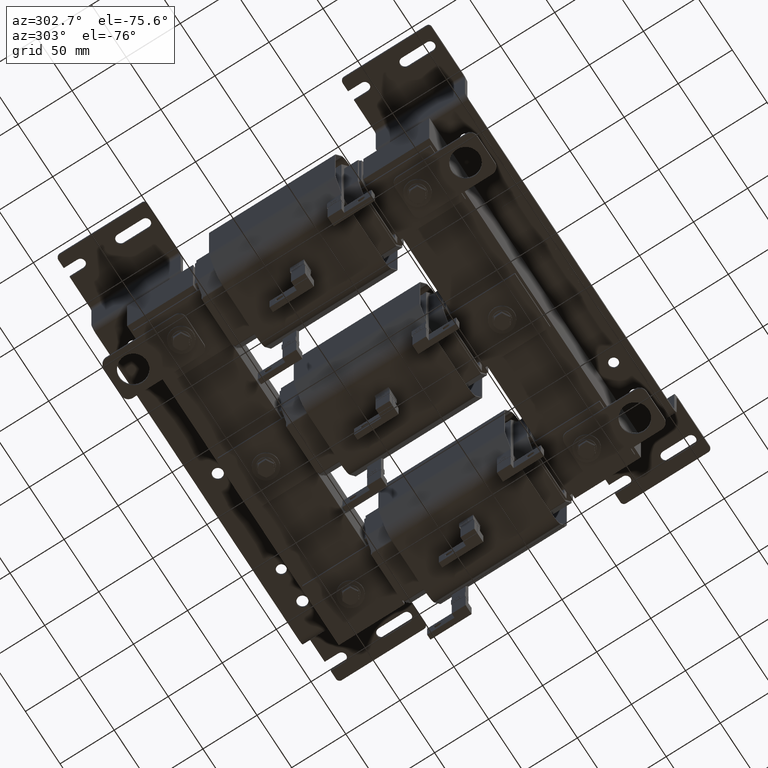
[diagram: clean part render]
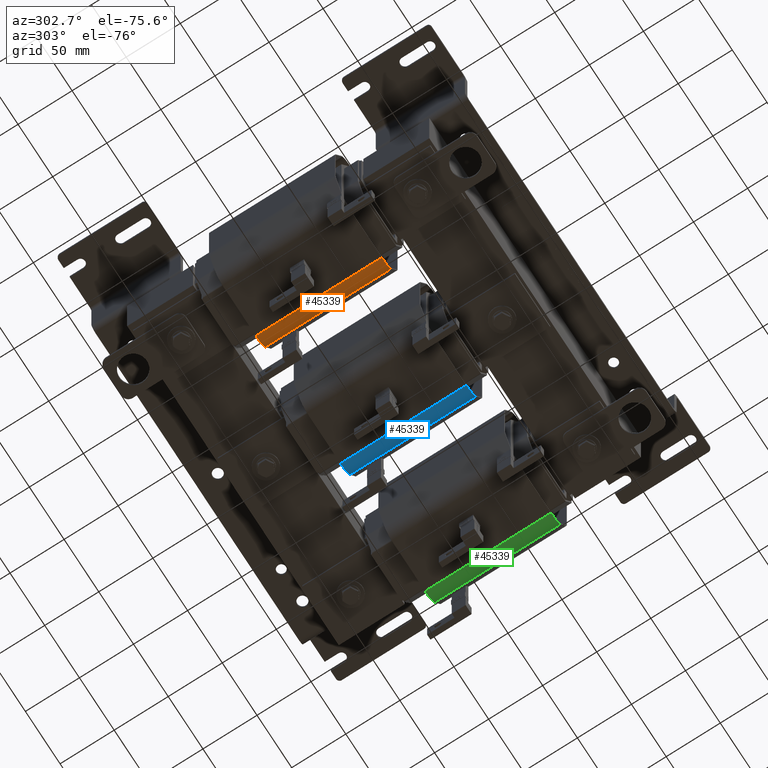
[diagram: same view with three faces highlighted in distinct colors, each labeled with its STEP entity id]
A machine part, auxiliary view with three faces highlighted in distinct colors.
Their STEP definitions:

[orange] entity #45339 — the highlighted cylindrical surface (edge-blend (fillet) strip) has radius 14.5288 mm, axis along (0, 1, 0).
#997=CYLINDRICAL_SURFACE('',#48810,0.572000000004519);
#2071=CIRCLE('',#48811,0.572000000004519);
#2072=CIRCLE('',#48812,0.572000000004519);
#5939=FACE_OUTER_BOUND('',#8530,.T.);
#8530=EDGE_LOOP('',(#40697,#40698,#40699,#40700));
#12828=LINE('',#78095,#17109);
#12829=LINE('',#78101,#17110);
#17109=VECTOR('',#58314,0.393700787401575);
#17110=VECTOR('',#58321,0.393700787401575);
#22309=VERTEX_POINT('',#78091);
#22310=VERTEX_POINT('',#78093);
#22311=VERTEX_POINT('',#78097);
#22312=VERTEX_POINT('',#78099);
#28554=EDGE_CURVE('',#22309,#22310,#12828,.T.);
#28555=EDGE_CURVE('',#22309,#22311,#2071,.T.);
#28556=EDGE_CURVE('',#22312,#22310,#2072,.T.);
#28557=EDGE_CURVE('',#22311,#22312,#12829,.T.);
#40697=ORIENTED_EDGE('',*,*,#28555,.F.);
#40698=ORIENTED_EDGE('',*,*,#28554,.T.);
#40699=ORIENTED_EDGE('',*,*,#28556,.F.);
#40700=ORIENTED_EDGE('',*,*,#28557,.F.);
#45339=ADVANCED_FACE('',(#5939),#997,.T.);
#48810=AXIS2_PLACEMENT_3D('',#78096,#58315,#58316);
#48811=AXIS2_PLACEMENT_3D('',#78098,#58317,#58318);
#48812=AXIS2_PLACEMENT_3D('',#78100,#58319,#58320);
#58314=DIRECTION('',(0.,0.,1.));
#58315=DIRECTION('center_axis',(0.,0.,1.));
#58316=DIRECTION('ref_axis',(0.348186529617957,-0.937425272004443,0.));
#58317=DIRECTION('center_axis',(0.,0.,-1.));
#58318=DIRECTION('ref_axis',(0.348186529617957,-0.937425272004443,0.));
#58319=DIRECTION('center_axis',(0.,0.,1.));
#58320=DIRECTION('ref_axis',(0.348186529617957,-0.937425272004443,0.));
#58321=DIRECTION('',(0.,0.,1.));
#78091=CARTESIAN_POINT('',(-1.44699999999886,-0.867000000002953,0.));
#78093=CARTESIAN_POINT('',(-1.44699999999886,-0.867000000002953,4.59));
#78095=CARTESIAN_POINT('',(-1.44699999999886,-0.867000000002953,0.));
#78096=CARTESIAN_POINT('Origin',(-0.874999999997707,-0.867000000001159,
0.));
#78097=CARTESIAN_POINT('',(-1.07416269493974,-0.330792744413103,0.));
#78098=CARTESIAN_POINT('Origin',(-0.874999999997707,-0.867000000001159,
0.));
#78099=CARTESIAN_POINT('',(-1.07416269493974,-0.330792744413103,4.59));
#78100=CARTESIAN_POINT('Origin',(-0.874999999997707,-0.867000000001159,
4.59));
#78101=CARTESIAN_POINT('',(-1.07416269493974,-0.330792744413103,0.));

[blue] entity #45339 — the highlighted cylindrical surface (edge-blend (fillet) strip) has radius 14.5288 mm, axis along (0, 1, 0).
#997=CYLINDRICAL_SURFACE('',#48810,0.572000000004519);
#2071=CIRCLE('',#48811,0.572000000004519);
#2072=CIRCLE('',#48812,0.572000000004519);
#5939=FACE_OUTER_BOUND('',#8530,.T.);
#8530=EDGE_LOOP('',(#40697,#40698,#40699,#40700));
#12828=LINE('',#78095,#17109);
#12829=LINE('',#78101,#17110);
#17109=VECTOR('',#58314,0.393700787401575);
#17110=VECTOR('',#58321,0.393700787401575);
#22309=VERTEX_POINT('',#78091);
#22310=VERTEX_POINT('',#78093);
#22311=VERTEX_POINT('',#78097);
#22312=VERTEX_POINT('',#78099);
#28554=EDGE_CURVE('',#22309,#22310,#12828,.T.);
#28555=EDGE_CURVE('',#22309,#22311,#2071,.T.);
#28556=EDGE_CURVE('',#22312,#22310,#2072,.T.);
#28557=EDGE_CURVE('',#22311,#22312,#12829,.T.);
#40697=ORIENTED_EDGE('',*,*,#28555,.F.);
#40698=ORIENTED_EDGE('',*,*,#28554,.T.);
#40699=ORIENTED_EDGE('',*,*,#28556,.F.);
#40700=ORIENTED_EDGE('',*,*,#28557,.F.);
#45339=ADVANCED_FACE('',(#5939),#997,.T.);
#48810=AXIS2_PLACEMENT_3D('',#78096,#58315,#58316);
#48811=AXIS2_PLACEMENT_3D('',#78098,#58317,#58318);
#48812=AXIS2_PLACEMENT_3D('',#78100,#58319,#58320);
#58314=DIRECTION('',(0.,0.,1.));
#58315=DIRECTION('center_axis',(0.,0.,1.));
#58316=DIRECTION('ref_axis',(0.348186529617957,-0.937425272004443,0.));
#58317=DIRECTION('center_axis',(0.,0.,-1.));
#58318=DIRECTION('ref_axis',(0.348186529617957,-0.937425272004443,0.));
#58319=DIRECTION('center_axis',(0.,0.,1.));
#58320=DIRECTION('ref_axis',(0.348186529617957,-0.937425272004443,0.));
#58321=DIRECTION('',(0.,0.,1.));
#78091=CARTESIAN_POINT('',(-1.44699999999886,-0.867000000002953,0.));
#78093=CARTESIAN_POINT('',(-1.44699999999886,-0.867000000002953,4.59));
#78095=CARTESIAN_POINT('',(-1.44699999999886,-0.867000000002953,0.));
#78096=CARTESIAN_POINT('Origin',(-0.874999999997707,-0.867000000001159,
0.));
#78097=CARTESIAN_POINT('',(-1.07416269493974,-0.330792744413103,0.));
#78098=CARTESIAN_POINT('Origin',(-0.874999999997707,-0.867000000001159,
0.));
#78099=CARTESIAN_POINT('',(-1.07416269493974,-0.330792744413103,4.59));
#78100=CARTESIAN_POINT('Origin',(-0.874999999997707,-0.867000000001159,
4.59));
#78101=CARTESIAN_POINT('',(-1.07416269493974,-0.330792744413103,0.));

[green] entity #45339 — the highlighted cylindrical surface (edge-blend (fillet) strip) has radius 14.5288 mm, axis along (0, 1, 0).
#997=CYLINDRICAL_SURFACE('',#48810,0.572000000004519);
#2071=CIRCLE('',#48811,0.572000000004519);
#2072=CIRCLE('',#48812,0.572000000004519);
#5939=FACE_OUTER_BOUND('',#8530,.T.);
#8530=EDGE_LOOP('',(#40697,#40698,#40699,#40700));
#12828=LINE('',#78095,#17109);
#12829=LINE('',#78101,#17110);
#17109=VECTOR('',#58314,0.393700787401575);
#17110=VECTOR('',#58321,0.393700787401575);
#22309=VERTEX_POINT('',#78091);
#22310=VERTEX_POINT('',#78093);
#22311=VERTEX_POINT('',#78097);
#22312=VERTEX_POINT('',#78099);
#28554=EDGE_CURVE('',#22309,#22310,#12828,.T.);
#28555=EDGE_CURVE('',#22309,#22311,#2071,.T.);
#28556=EDGE_CURVE('',#22312,#22310,#2072,.T.);
#28557=EDGE_CURVE('',#22311,#22312,#12829,.T.);
#40697=ORIENTED_EDGE('',*,*,#28555,.F.);
#40698=ORIENTED_EDGE('',*,*,#28554,.T.);
#40699=ORIENTED_EDGE('',*,*,#28556,.F.);
#40700=ORIENTED_EDGE('',*,*,#28557,.F.);
#45339=ADVANCED_FACE('',(#5939),#997,.T.);
#48810=AXIS2_PLACEMENT_3D('',#78096,#58315,#58316);
#48811=AXIS2_PLACEMENT_3D('',#78098,#58317,#58318);
#48812=AXIS2_PLACEMENT_3D('',#78100,#58319,#58320);
#58314=DIRECTION('',(0.,0.,1.));
#58315=DIRECTION('center_axis',(0.,0.,1.));
#58316=DIRECTION('ref_axis',(0.348186529617957,-0.937425272004443,0.));
#58317=DIRECTION('center_axis',(0.,0.,-1.));
#58318=DIRECTION('ref_axis',(0.348186529617957,-0.937425272004443,0.));
#58319=DIRECTION('center_axis',(0.,0.,1.));
#58320=DIRECTION('ref_axis',(0.348186529617957,-0.937425272004443,0.));
#58321=DIRECTION('',(0.,0.,1.));
#78091=CARTESIAN_POINT('',(-1.44699999999886,-0.867000000002953,0.));
#78093=CARTESIAN_POINT('',(-1.44699999999886,-0.867000000002953,4.59));
#78095=CARTESIAN_POINT('',(-1.44699999999886,-0.867000000002953,0.));
#78096=CARTESIAN_POINT('Origin',(-0.874999999997707,-0.867000000001159,
0.));
#78097=CARTESIAN_POINT('',(-1.07416269493974,-0.330792744413103,0.));
#78098=CARTESIAN_POINT('Origin',(-0.874999999997707,-0.867000000001159,
0.));
#78099=CARTESIAN_POINT('',(-1.07416269493974,-0.330792744413103,4.59));
#78100=CARTESIAN_POINT('Origin',(-0.874999999997707,-0.867000000001159,
4.59));
#78101=CARTESIAN_POINT('',(-1.07416269493974,-0.330792744413103,0.));